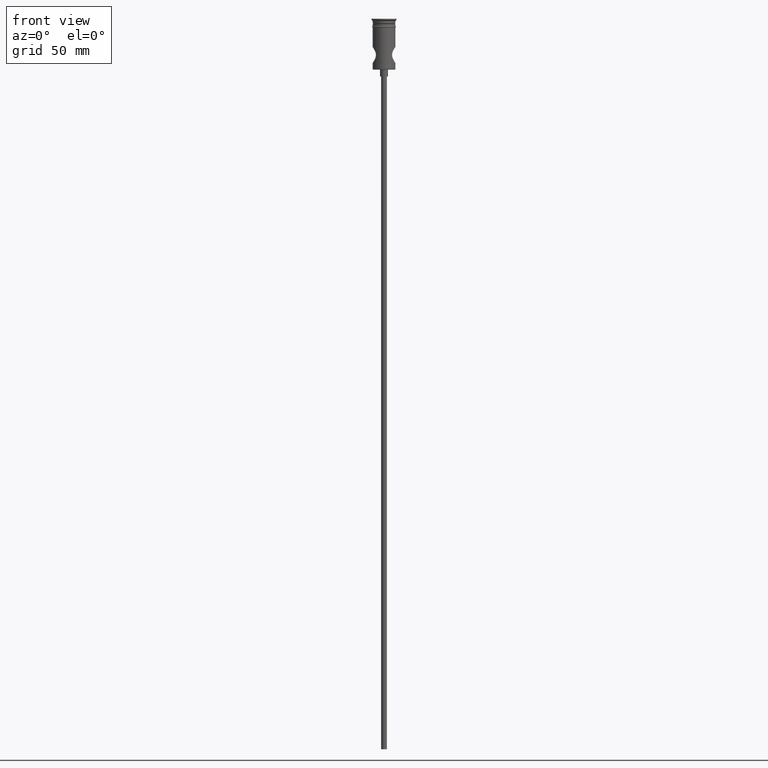
[diagram: clean part render]
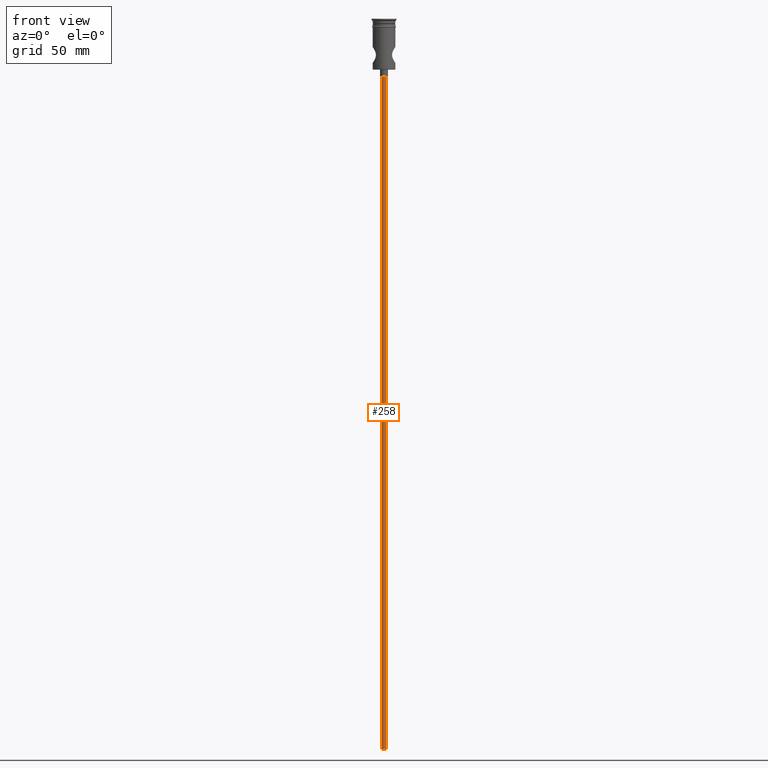
[diagram: same view with one face highlighted and labeled with its STEP entity id]
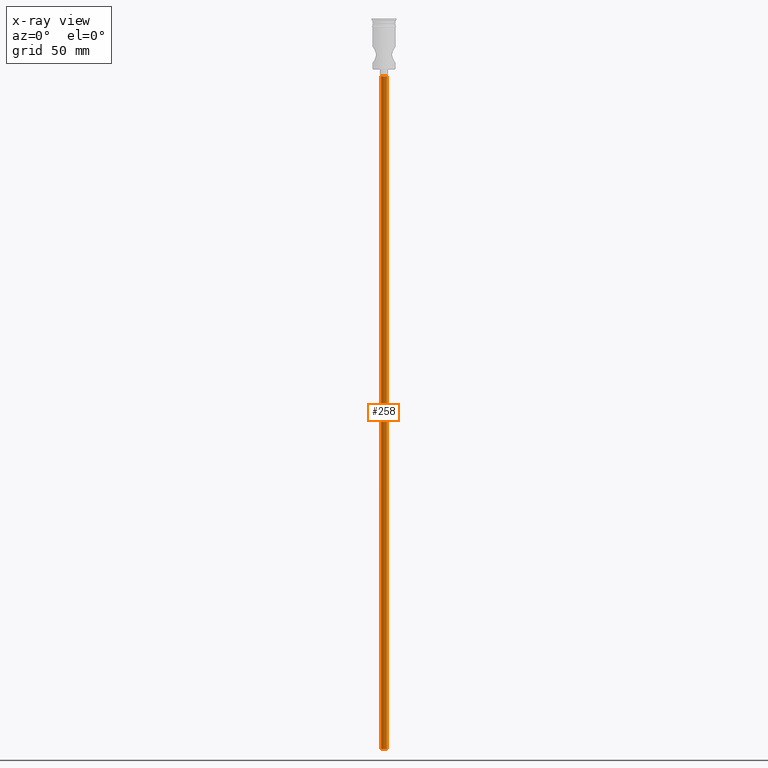
[diagram: x-ray of the same camera — body ghosted, the highlighted face saturated]
A machine part, front view. The second image highlights one B-rep face of the part: STEP entity #258.
The next image is the same camera in x-ray: the body ghosted, the highlighted face saturated — about 0% of this face is hidden behind the body in this view.
In plain terms, the highlighted cylindrical surface (edge-blend (fillet) strip) has radius 1.25 mm, axis along (-0, -0, 1).
Its self-contained STEP definition (entity closure, byte-faithful):
#24 = CARTESIAN_POINT ( 'NONE',  ( 1.250000000000000000, 0.000000000000000000, -322.5000000000000000 ) ) ;
#101 = DIRECTION ( 'NONE',  ( -0.000000000000000000, -0.000000000000000000, 1.000000000000000000 ) ) ;
#107 = LINE ( 'NONE', #431, #147 ) ;
#125 = ORIENTED_EDGE ( 'NONE', *, *, #563, .F. ) ;
#147 = VECTOR ( 'NONE', #101, 1000.000000000000000 ) ;
#210 = CARTESIAN_POINT ( 'NONE',  ( 0.000000000000000000, 0.000000000000000000, -322.5000000000000000 ) ) ;
#226 = DIRECTION ( 'NONE',  ( 0.000000000000000000, 0.000000000000000000, -1.000000000000000000 ) ) ;
#258 = ADVANCED_FACE ( 'NONE', ( #319 ), #767, .T. ) ;
#294 = ORIENTED_EDGE ( 'NONE', *, *, #919, .T. ) ;
#304 = EDGE_CURVE ( 'NONE', #571, #417, #1179, .T. ) ;
#319 = FACE_OUTER_BOUND ( 'NONE', #1036, .T. ) ;
#417 = VERTEX_POINT ( 'NONE', #802 ) ;
#431 = CARTESIAN_POINT ( 'NONE',  ( -1.250000000000000000, 1.530808498934191571E-16, -322.5000000000000000 ) ) ;
#462 = LINE ( 'NONE', #793, #1148 ) ;
#549 = AXIS2_PLACEMENT_3D ( 'NONE', #685, #226, #675 ) ;
#558 = DIRECTION ( 'NONE',  ( 1.000000000000000000, 0.000000000000000000, 0.000000000000000000 ) ) ;
#563 = EDGE_CURVE ( 'NONE', #695, #417, #107, .T. ) ;
#571 = VERTEX_POINT ( 'NONE', #764 ) ;
#617 = CARTESIAN_POINT ( 'NONE',  ( 0.000000000000000000, 0.000000000000000000, -322.5000000000000000 ) ) ;
#675 = DIRECTION ( 'NONE',  ( -1.000000000000000000, 0.000000000000000000, 0.000000000000000000 ) ) ;
#685 = CARTESIAN_POINT ( 'NONE',  ( 0.000000000000000000, 0.000000000000000000, -25.50000000000000000 ) ) ;
#694 = DIRECTION ( 'NONE',  ( -0.000000000000000000, -0.000000000000000000, 1.000000000000000000 ) ) ;
#695 = VERTEX_POINT ( 'NONE', #1141 ) ;
#711 = AXIS2_PLACEMENT_3D ( 'NONE', #210, #694, #558 ) ;
#754 = ORIENTED_EDGE ( 'NONE', *, *, #834, .F. ) ;
#764 = CARTESIAN_POINT ( 'NONE',  ( 1.250000000000000000, 0.000000000000000000, -25.50000000000000000 ) ) ;
#767 = CYLINDRICAL_SURFACE ( 'NONE', #711, 1.250000000000000000 ) ;
#793 = CARTESIAN_POINT ( 'NONE',  ( 1.250000000000000000, 0.000000000000000000, -322.5000000000000000 ) ) ;
#802 = CARTESIAN_POINT ( 'NONE',  ( -1.250000000000000000, 1.530808498934191571E-16, -25.50000000000000000 ) ) ;
#834 = EDGE_CURVE ( 'NONE', #957, #695, #1019, .T. ) ;
#841 = DIRECTION ( 'NONE',  ( 0.000000000000000000, 0.000000000000000000, -1.000000000000000000 ) ) ;
#919 = EDGE_CURVE ( 'NONE', #957, #571, #462, .T. ) ;
#957 = VERTEX_POINT ( 'NONE', #24 ) ;
#1010 = AXIS2_PLACEMENT_3D ( 'NONE', #617, #841, #1277 ) ;
#1019 = CIRCLE ( 'NONE', #1010, 1.250000000000000000 ) ;
#1024 = DIRECTION ( 'NONE',  ( -0.000000000000000000, -0.000000000000000000, 1.000000000000000000 ) ) ;
#1036 = EDGE_LOOP ( 'NONE', ( #125, #754, #294, #1431 ) ) ;
#1141 = CARTESIAN_POINT ( 'NONE',  ( -1.250000000000000000, 1.530808498934191571E-16, -322.5000000000000000 ) ) ;
#1148 = VECTOR ( 'NONE', #1024, 1000.000000000000000 ) ;
#1179 = CIRCLE ( 'NONE', #549, 1.250000000000000000 ) ;
#1277 = DIRECTION ( 'NONE',  ( -1.000000000000000000, 0.000000000000000000, 0.000000000000000000 ) ) ;
#1431 = ORIENTED_EDGE ( 'NONE', *, *, #304, .T. ) ;